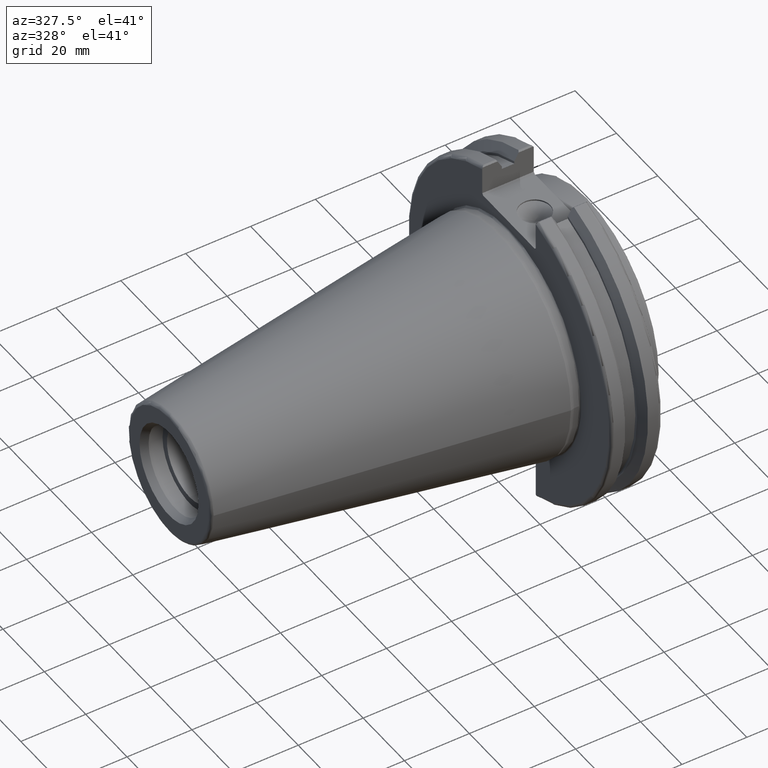
[diagram: clean part render]
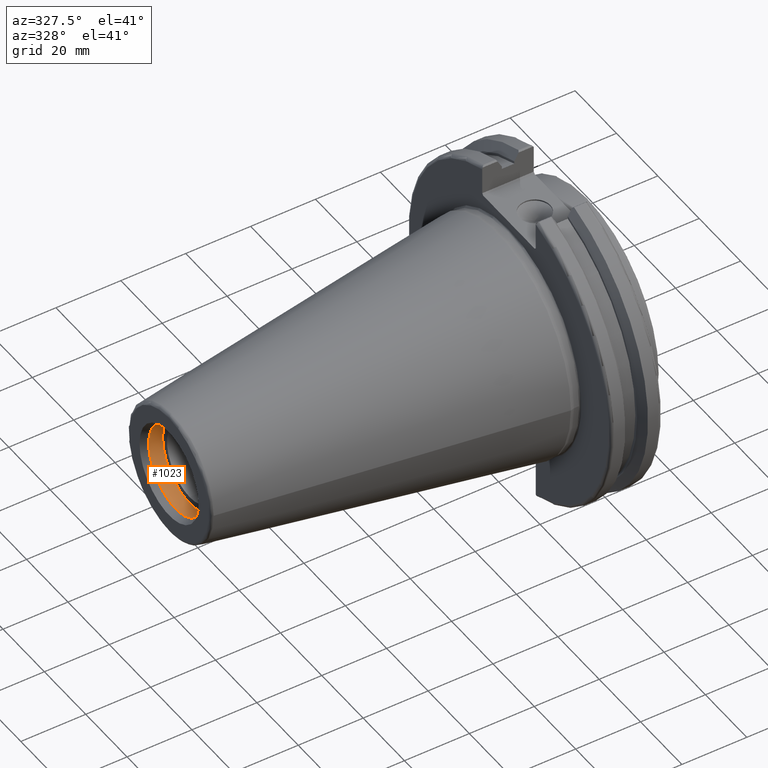
[diagram: same view with one face highlighted and labeled with its STEP entity id]
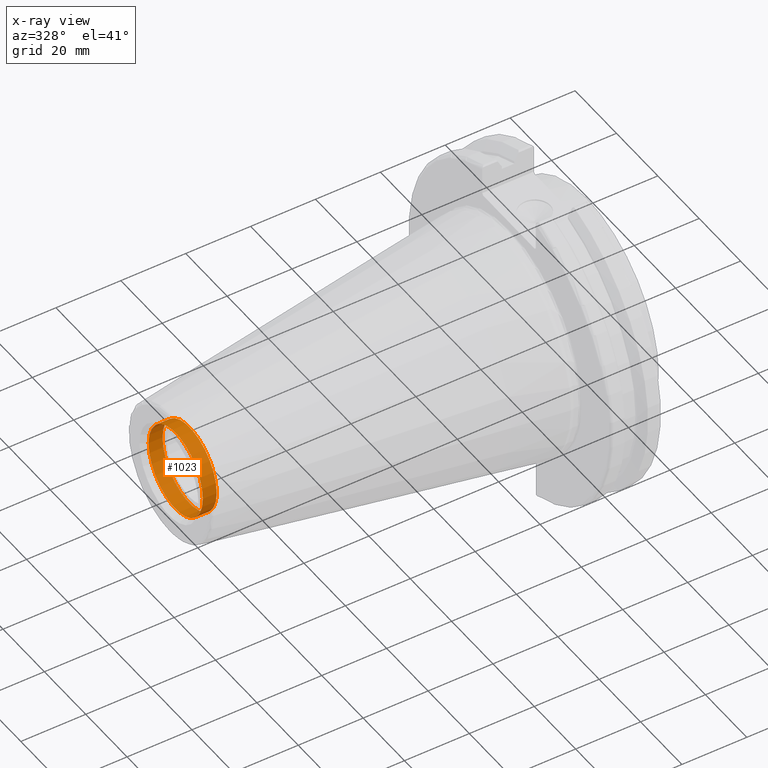
[diagram: x-ray of the same camera — body ghosted, the highlighted face saturated]
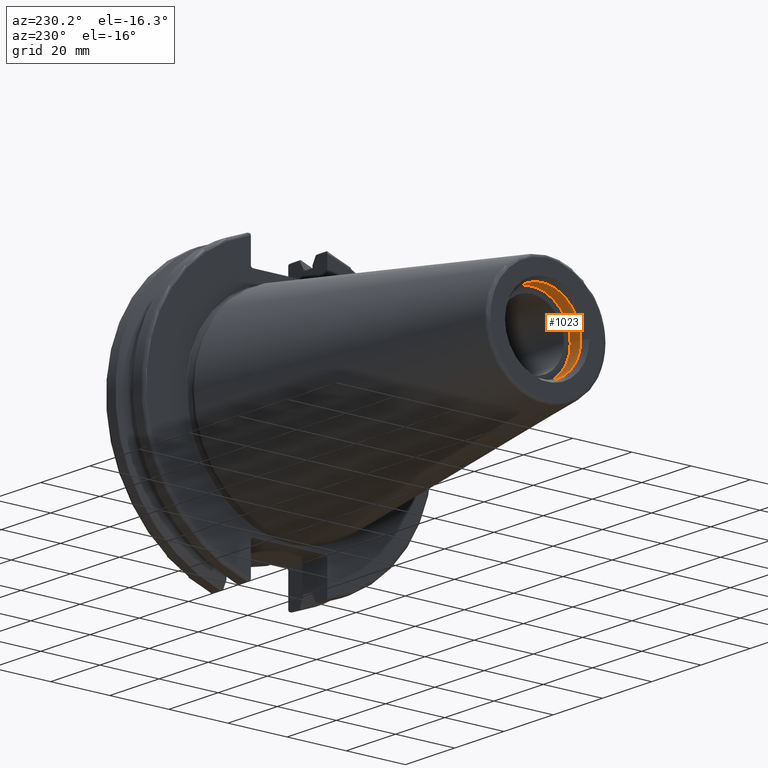
[diagram: same view with one face highlighted and labeled with its STEP entity id]
A machine part, auxiliary view. The second image highlights one B-rep face of the part: STEP entity #1023.
The next image is the same camera in x-ray: the body ghosted, the highlighted face saturated — about 0% of this face is hidden behind the body in this view.
A second angle (auxiliary view) of the same face is appended — the face is thin or edge-on in the first view.
In plain terms, the highlighted cylindrical surface (bore or boss wall) has radius 13.1 mm, axis along (1, 0, 0).
Its self-contained STEP definition (entity closure, byte-faithful):
#157=LINE('',#1882,#225);
#225=VECTOR('',#1427,13.1);
#239=CYLINDRICAL_SURFACE('',#1150,13.1);
#293=FACE_OUTER_BOUND('',#355,.T.);
#355=EDGE_LOOP('',(#948,#949,#950,#951));
#407=CIRCLE('',#1151,13.1);
#408=CIRCLE('',#1152,13.1);
#507=VERTEX_POINT('',#1879);
#508=VERTEX_POINT('',#1881);
#655=EDGE_CURVE('',#507,#507,#407,.T.);
#656=EDGE_CURVE('',#507,#508,#157,.T.);
#657=EDGE_CURVE('',#508,#508,#408,.T.);
#948=ORIENTED_EDGE('',*,*,#655,.T.);
#949=ORIENTED_EDGE('',*,*,#656,.T.);
#950=ORIENTED_EDGE('',*,*,#657,.F.);
#951=ORIENTED_EDGE('',*,*,#656,.F.);
#1023=ADVANCED_FACE('',(#293),#239,.F.);
#1150=AXIS2_PLACEMENT_3D('',#1878,#1423,#1424);
#1151=AXIS2_PLACEMENT_3D('',#1880,#1425,#1426);
#1152=AXIS2_PLACEMENT_3D('',#1883,#1428,#1429);
#1423=DIRECTION('center_axis',(1.,0.,0.));
#1424=DIRECTION('ref_axis',(0.,1.,0.));
#1425=DIRECTION('center_axis',(1.,0.,0.));
#1426=DIRECTION('ref_axis',(0.,0.,-1.));
#1427=DIRECTION('',(-1.,0.,0.));
#1428=DIRECTION('center_axis',(1.,0.,0.));
#1429=DIRECTION('ref_axis',(0.,0.,-1.));
#1878=CARTESIAN_POINT('Origin',(-97.396594833006,0.,0.));
#1879=CARTESIAN_POINT('',(-95.25,-13.1,-1.60428730688303E-15));
#1880=CARTESIAN_POINT('Origin',(-95.25,0.,0.));
#1881=CARTESIAN_POINT('',(-99.5431896660119,-13.1,-1.60428730688303E-15));
#1882=CARTESIAN_POINT('',(-97.396594833006,-13.1,-1.60428730688303E-15));
#1883=CARTESIAN_POINT('Origin',(-99.5431896660119,0.,0.));